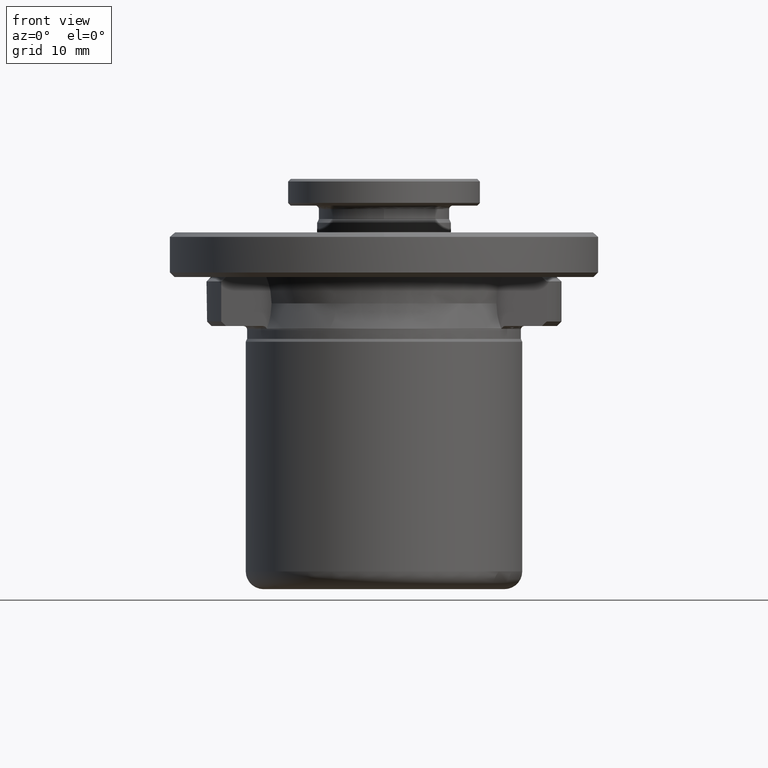
[diagram: clean part render]
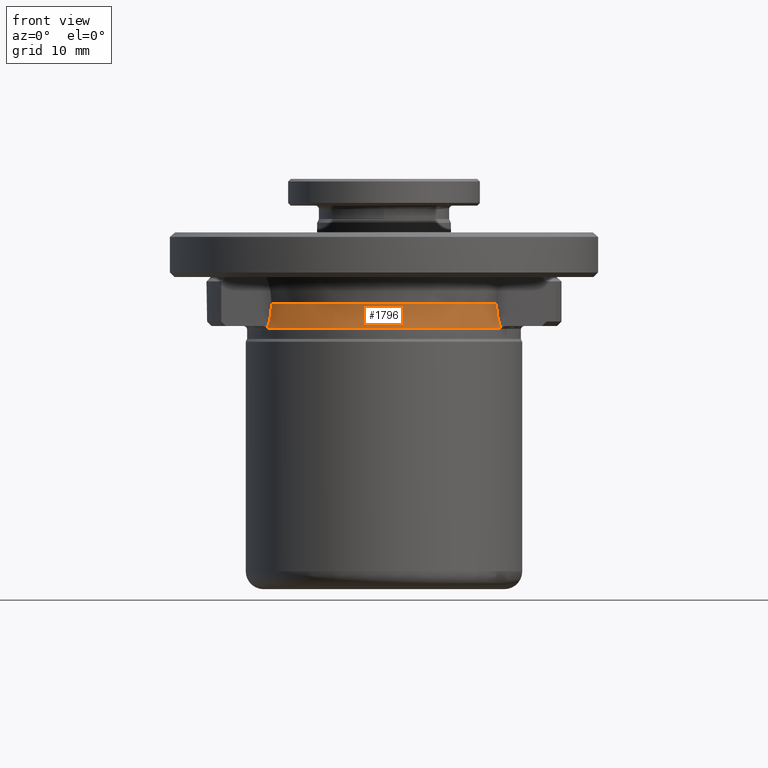
[diagram: same view with one face highlighted and labeled with its STEP entity id]
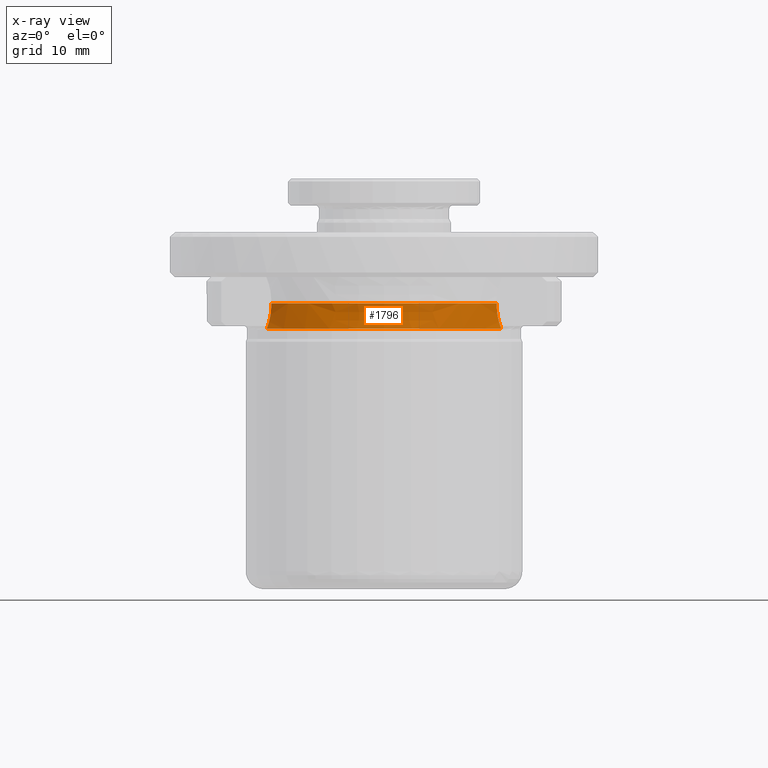
[diagram: x-ray of the same camera — body ghosted, the highlighted face saturated]
A machine part, front view. The second image highlights one B-rep face of the part: STEP entity #1796.
The next image is the same camera in x-ray: the body ghosted, the highlighted face saturated — about 0% of this face is hidden behind the body in this view.
In plain terms, the highlighted face is a freeform B-spline surface patch.
Its self-contained STEP definition (entity closure, byte-faithful):
#1 = CARTESIAN_POINT ( 'NONE',  ( 12.60188477964879200, -7.950000000000000200, 4.478485616234512400 ) ) ;
#58 = CARTESIAN_POINT ( 'NONE',  ( -6.396680825999999900, -18.60388350000000200, 5.376986363999999500 ) ) ;
#74 =( BOUNDED_SURFACE ( )  B_SPLINE_SURFACE ( 3, 3, ( 
 ( #1815, #1093, #1524, #1377 ),
 ( #1481, #357, #199, #510 ),
 ( #1531, #1385, #803, #655 ),
 ( #1680, #58, #1830, #504 ) ),
 .UNSPECIFIED., .F., .F., .F. ) 
 B_SPLINE_SURFACE_WITH_KNOTS ( ( 4, 4 ),
 ( 4, 4 ),
 ( 0.0000000000000000000, 1.000000000000000000 ),
 ( 0.0000000000000000000, 1.000000000000000000 ),
 .UNSPECIFIED. ) 
 GEOMETRIC_REPRESENTATION_ITEM ( )  RATIONAL_B_SPLINE_SURFACE ( (
 ( 1.000000000000000000, 0.6712973884753921100, 0.6712973884753921100, 1.000000000000000000),
 ( 0.9774545972394599300, 0.6561627184801160900, 0.6561627184801160900, 0.9774545972394599300),
 ( 0.9774545972394599300, 0.6561627184801160900, 0.6561627184801160900, 0.9774545972394599300),
 ( 1.000000000000000000, 0.6712973884753921100, 0.6712973884753921100, 1.000000000000000000) ) ) 
 REPRESENTATION_ITEM ( '' )  SURFACE ( )  );
#114 = DIRECTION ( 'NONE',  ( -1.000000000000000000, 0.0000000000000000000, 0.0000000000000000000 ) ) ;
#122 = DIRECTION ( 'NONE',  ( 0.0000000000000000000, -1.000000000000000000, 1.411586627435736600E-017 ) ) ;
#157 = EDGE_CURVE ( 'NONE', #676, #203, #764, .T. ) ;
#180 = EDGE_CURVE ( 'NONE', #1666, #398, #1480, .T. ) ;
#196 = EDGE_CURVE ( 'NONE', #676, #1666, #356, .T. ) ;
#199 = CARTESIAN_POINT ( 'NONE',  ( 6.437521500999999100, -18.72266309399999800, 2.239605722999999900 ) ) ;
#203 = VERTEX_POINT ( 'NONE', #802 ) ;
#249 = CARTESIAN_POINT ( 'NONE',  ( 0.0000000000000000000, 9.536157500565948900E-019, 1.633581560591981000 ) ) ;
#262 = DIRECTION ( 'NONE',  ( 0.0000000000000000000, -7.062286934231402900E-018, -1.000000000000000000 ) ) ;
#296 = CARTESIAN_POINT ( 'NONE',  ( -12.60188477964945100, -7.950000000000000200, 4.478485616309445300 ) ) ;
#356 = CIRCLE ( 'NONE', #928, 14.89999999993788300 ) ;
#357 = CARTESIAN_POINT ( 'NONE',  ( -6.437521500999999100, -18.72266309399999800, 2.239605722999999900 ) ) ;
#359 = FACE_OUTER_BOUND ( 'NONE', #1132, .T. ) ;
#398 = VERTEX_POINT ( 'NONE', #1164 ) ;
#504 = CARTESIAN_POINT ( 'NONE',  ( 12.88222540099999900, -7.576290202000000900, 5.376986363999999500 ) ) ;
#510 = CARTESIAN_POINT ( 'NONE',  ( 12.96447411499999800, -7.624662288999998900, 2.239605722999999900 ) ) ;
#516 = ORIENTED_EDGE ( 'NONE', *, *, #180, .T. ) ;
#552 = ORIENTED_EDGE ( 'NONE', *, *, #157, .F. ) ;
#602 = CARTESIAN_POINT ( 'NONE',  ( -13.14428442760649100, -7.950000000000000200, 1.633581561958929600 ) ) ;
#655 = CARTESIAN_POINT ( 'NONE',  ( 12.74601410299999800, -7.496181657999997600, 3.802039048000000100 ) ) ;
#660 = ORIENTED_EDGE ( 'NONE', *, *, #702, .F. ) ;
#676 = VERTEX_POINT ( 'NONE', #852 ) ;
#702 = EDGE_CURVE ( 'NONE', #203, #398, #1721, .T. ) ;
#764 = B_SPLINE_CURVE_WITH_KNOTS ( 'NONE', 3,
 ( #1, #1818, #1620, #976, #1701, #1612 ),
 .UNSPECIFIED., .F., .F.,
 ( 4, 2, 4 ),
 ( 0.0000000000000000000, 0.001455991599470953600, 0.002911983198941907200 ),
 .UNSPECIFIED. ) ;
#802 = CARTESIAN_POINT ( 'NONE',  ( 13.14428442762027200, -7.950000000000000200, 1.633581560802892700 ) ) ;
#803 = CARTESIAN_POINT ( 'NONE',  ( 6.329044982000000100, -18.40717376800000300, 3.802039048000000600 ) ) ;
#852 = CARTESIAN_POINT ( 'NONE',  ( 12.60188477964879200, -7.950000000000000200, 4.478485616234512400 ) ) ;
#890 = CARTESIAN_POINT ( 'NONE',  ( -12.60188477964945100, -7.950000000000000200, 4.478485616309445300 ) ) ;
#928 = AXIS2_PLACEMENT_3D ( 'NONE', #1586, #1442, #114 ) ;
#940 = CARTESIAN_POINT ( 'NONE',  ( -12.60188477949831500, -7.949999999999996600, 3.991488783735479100 ) ) ;
#976 = CARTESIAN_POINT ( 'NONE',  ( 12.83224210311896000, -7.949999999999996600, 2.552328994703145300 ) ) ;
#1093 = CARTESIAN_POINT ( 'NONE',  ( -6.714773443000000300, -19.52901297599999700, 0.7953634549999998300 ) ) ;
#1132 = EDGE_LOOP ( 'NONE', ( #516, #660, #552, #1566 ) ) ;
#1155 = CARTESIAN_POINT ( 'NONE',  ( -12.64875544744906200, -7.949999999999996600, 3.506562385610843400 ) ) ;
#1164 = CARTESIAN_POINT ( 'NONE',  ( -13.14428442760649100, -7.950000000000000200, 1.633581561958929600 ) ) ;
#1239 = CARTESIAN_POINT ( 'NONE',  ( -12.83224210311896300, -7.949999999999994800, 2.552328994703144400 ) ) ;
#1377 = CARTESIAN_POINT ( 'NONE',  ( 13.52282962900000000, -7.953042152000001900, 0.7953634549999999400 ) ) ;
#1385 = CARTESIAN_POINT ( 'NONE',  ( -6.329044982000000100, -18.40717376800000300, 3.802039048000000600 ) ) ;
#1442 = DIRECTION ( 'NONE',  ( 0.0000000000000000000, -0.0000000000000000000, -1.000000000000000000 ) ) ;
#1480 = B_SPLINE_CURVE_WITH_KNOTS ( 'NONE', 3,
 ( #296, #940, #1155, #1239, #1671, #602 ),
 .UNSPECIFIED., .F., .F.,
 ( 4, 2, 4 ),
 ( 0.0000000000000000000, 0.001455991599470953600, 0.002911983198941907200 ),
 .UNSPECIFIED. ) ;
#1481 = CARTESIAN_POINT ( 'NONE',  ( -12.96447411499999800, -7.624662288999998900, 2.239605722999999900 ) ) ;
#1524 = CARTESIAN_POINT ( 'NONE',  ( 6.714773443000000300, -19.52901297599999700, 0.7953634549999998300 ) ) ;
#1531 = CARTESIAN_POINT ( 'NONE',  ( -12.74601410299999800, -7.496181657999997600, 3.802039048000000100 ) ) ;
#1566 = ORIENTED_EDGE ( 'NONE', *, *, #196, .T. ) ;
#1586 = CARTESIAN_POINT ( 'NONE',  ( 5.204170427930421300E-015, 2.532479434491641300E-011, 4.478485616159577600 ) ) ;
#1612 = CARTESIAN_POINT ( 'NONE',  ( 13.14428442762027200, -7.950000000000000200, 1.633581560802892700 ) ) ;
#1620 = CARTESIAN_POINT ( 'NONE',  ( 12.64875544744905900, -7.949999999999998400, 3.506562385610845700 ) ) ;
#1666 = VERTEX_POINT ( 'NONE', #890 ) ;
#1671 = CARTESIAN_POINT ( 'NONE',  ( -12.96762867601157000, -7.949999999999996600, 2.087259394703678200 ) ) ;
#1680 = CARTESIAN_POINT ( 'NONE',  ( -12.88222540099999900, -7.576290202000000900, 5.376986363999999500 ) ) ;
#1701 = CARTESIAN_POINT ( 'NONE',  ( 12.96762867601156800, -7.950000000000000200, 2.087259394703679500 ) ) ;
#1721 = CIRCLE ( 'NONE', #1838, 15.36146845560654100 ) ;
#1796 = ADVANCED_FACE ( 'NONE', ( #359 ), #74, .F. ) ;
#1815 = CARTESIAN_POINT ( 'NONE',  ( -13.52282962900000000, -7.953042152000001900, 0.7953634549999999400 ) ) ;
#1818 = CARTESIAN_POINT ( 'NONE',  ( 12.60188477949831700, -7.950000000000000200, 3.991488783735480400 ) ) ;
#1830 = CARTESIAN_POINT ( 'NONE',  ( 6.396680825999999900, -18.60388350000000200, 5.376986363999999500 ) ) ;
#1838 = AXIS2_PLACEMENT_3D ( 'NONE', #249, #262, #122 ) ;